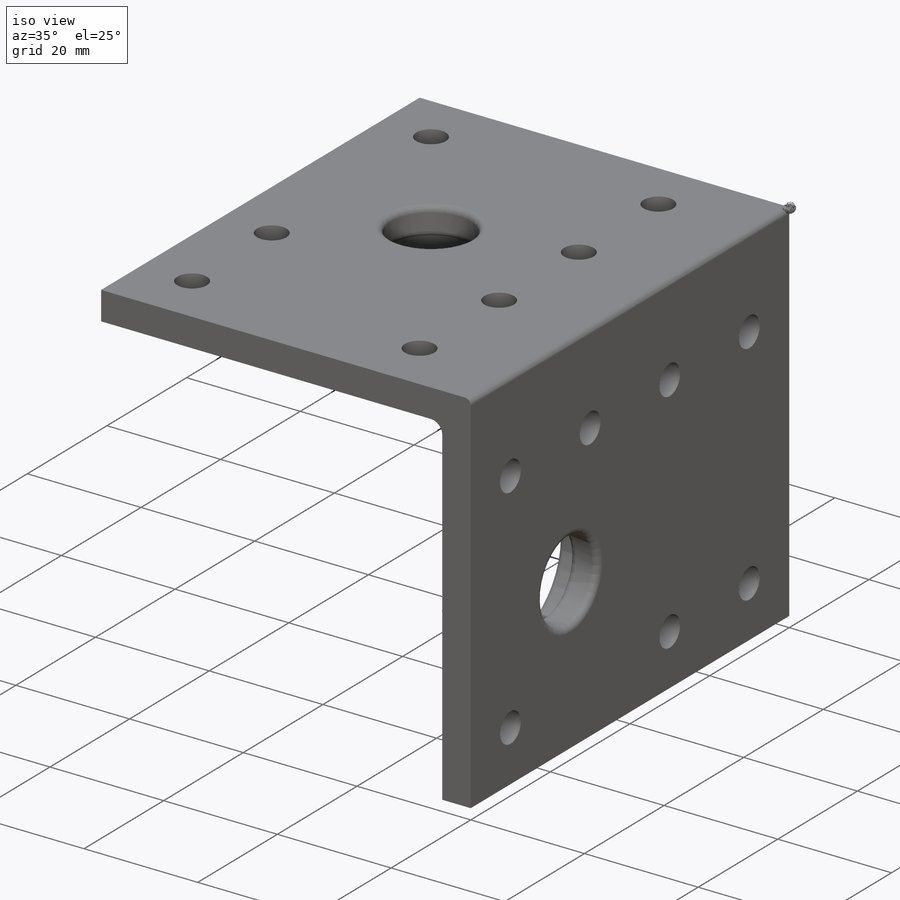
[diagram: iso view]
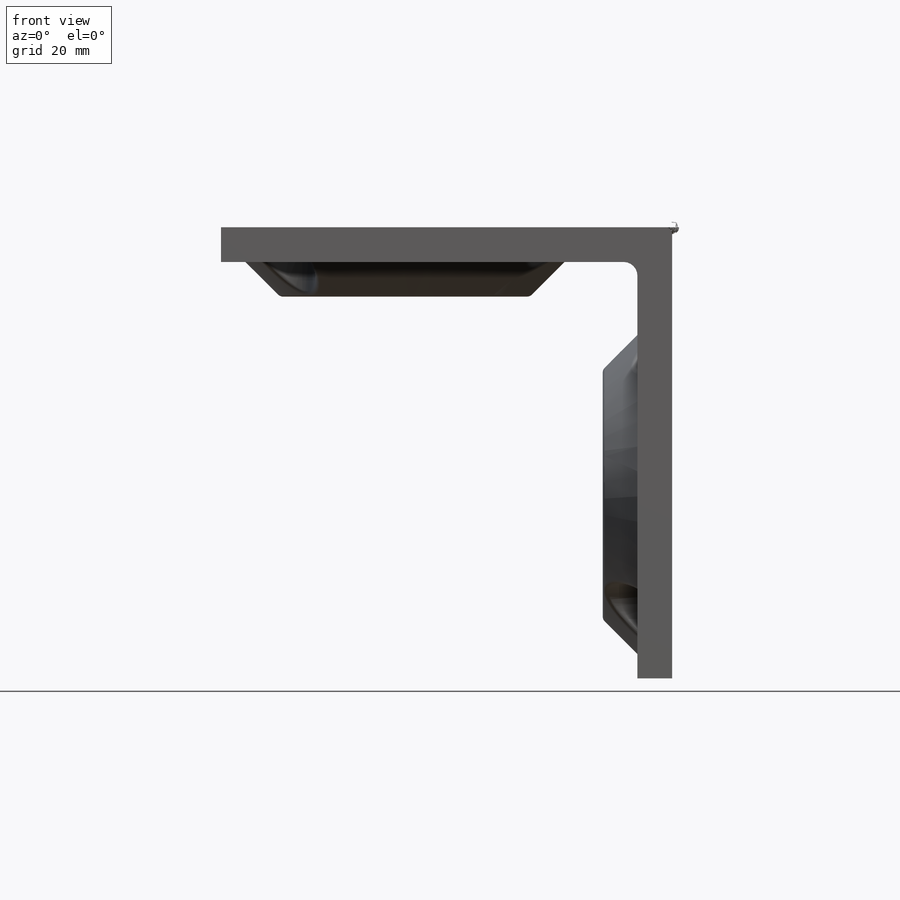
[diagram: front view]
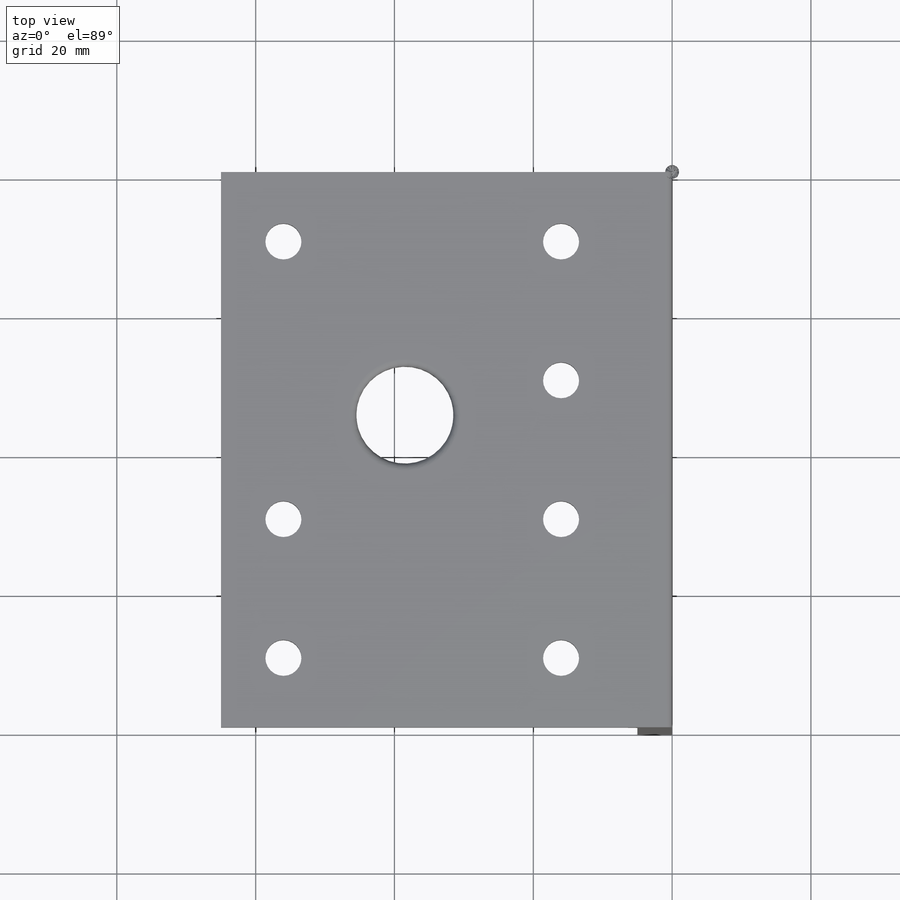
[diagram: top view]
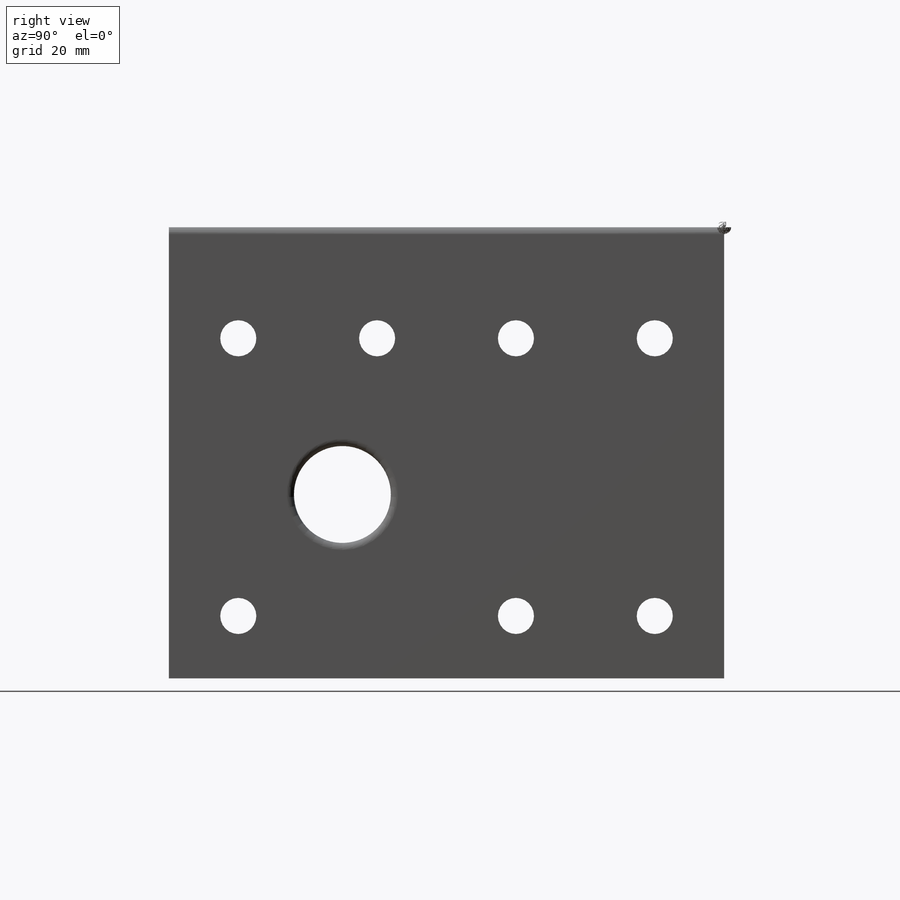
[diagram: right view]
SOLIDWORKS PART (.sldprt)
format: sldprt  version: not decoded by parser v0  size: 692,736 bytes
history: native  units: mm
features: sketch x12, cut_extrude x8, extrude x4, fillet x3, plane x2, material x1 (+13 scaffold rows collapsed)
feature tree (43):
  scaffold x13  (default folders/planes/origin — collapsed)
  material  "ABS"
  sketch  "Sketch1"  dims[c1.D1=80.0mm c1.D2=80.0mm c1.D3=5.0mm c1.D4=5.0mm c2.D1=60.0mm c2.D2=60.0mm]
  extrude  "Boss-Extrude1"  Depth=80mm
  plane  "Plane1"  Offset=5mm
  sketch  "Sketch2"  dims[c1.D1=36.0mm c1.D2=36.0mm c1.D3=36.0mm c2.D2=33.5mm c2.D3=5.0mm]
  extrude  "Boss-Extrude2"  [1 undecoded]
  sketch  "Sketch3"  dims[D1=22.5mm]
  cut_extrude  "Cut-Extrude1"  [1 undecoded]
  plane  "Plane2"  Offset=5mm
  sketch  "Sketch4"  dims[c1.D2=~39.495758mm c1.D3=36.0mm c1.D4=36.0mm c2.D2=15.0mm c2.D4=33.5mm c2.D1=0.0mm]
  extrude  "Boss-Extrude3"  [1 undecoded]
  sketch  "Sketch6"  dims[D1=22.5mm D2=24.0mm]
  cut_extrude  "Cut-Extrude2"  [1 undecoded]
  sketch  "Sketch7"  dims[D1=14.0mm]
  cut_extrude  "Cut-Extrude3"  [1 undecoded]
  sketch  "Sketch8"  dims[D1=14.0mm]
  cut_extrude  "Cut-Extrude4"  [1 undecoded]
  sketch  "Sketch9"  dims[c1.D1=5.2mm c1.D2=5.2mm c1.D3=5.2mm c1.D4=5.2mm c1.D5=5.2mm c1.D6=5.2mm c2.D2=16.0mm c2.D3=10.0mm c2.D4=20.0mm c2.D5=20.0mm c2.D6=20.0mm c2.D7=2.0]
  cut_extrude  "Cut-Extrude5"  [1 undecoded]
  sketch  "Sketch10"  dims[c1.D1=9.3mm c1.D2=9.2mm c1.D3=9.2mm c2.D1=9.3mm]
  cut_extrude  "Cut-Extrude6"  [1 undecoded]
  sketch  "Sketch11"  dims[c1.D1=5.2mm c1.D2=5.2mm c1.D3=5.2mm c1.D4=5.2mm c1.D5=5.2mm c1.D6=5.2mm c1.D8=5.2mm c1.D9=5.2mm c2.D2=16.0mm c2.D3=10.0mm c2.D4=20.0mm c2.D5=20.0mm c2.D6=20.0mm c2.D8=40.0mm c2.D9=10.0mm c2.D7=2.0]
  cut_extrude  "Cut-Extrude7"  [1 undecoded]
  sketch  "Sketch13"  dims[D1=9.3mm D2=~8.200885mm]
  cut_extrude  "Cut-Extrude8"  [1 undecoded]
  fillet  "Fillet1"  Radius=1mm
  fillet  "Fillet2"  Radius=2mm
  fillet  "Fillet3"  Radius=1mm
  sketch  "Sketch14"  dims[D1=15.0mm D2=20.0mm D3=15.0mm D4=15.0mm D5=0.0mm]
  extrude  "Boss-Extrude4"  Depth=0.4mm
decode coverage: 17 of 27 modeling features carry decoded parameters
note: ~ marks probable driven/reference dimensions
note: 10 parameter values undecoded
summary: no parameter record found for 10 features
note: suppression state not decoded; provenance and decode notes live in map.json
